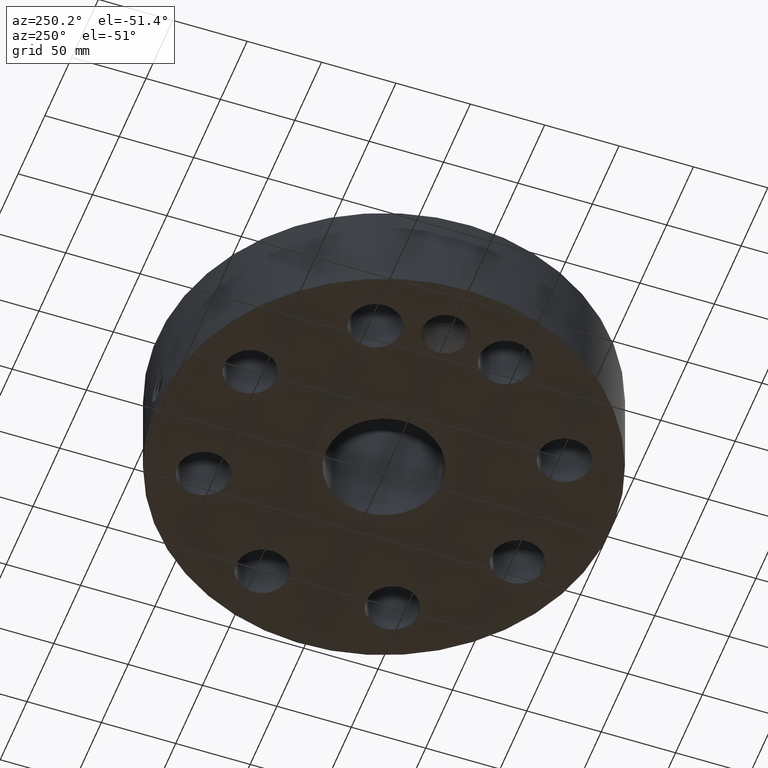
[diagram: clean part render]
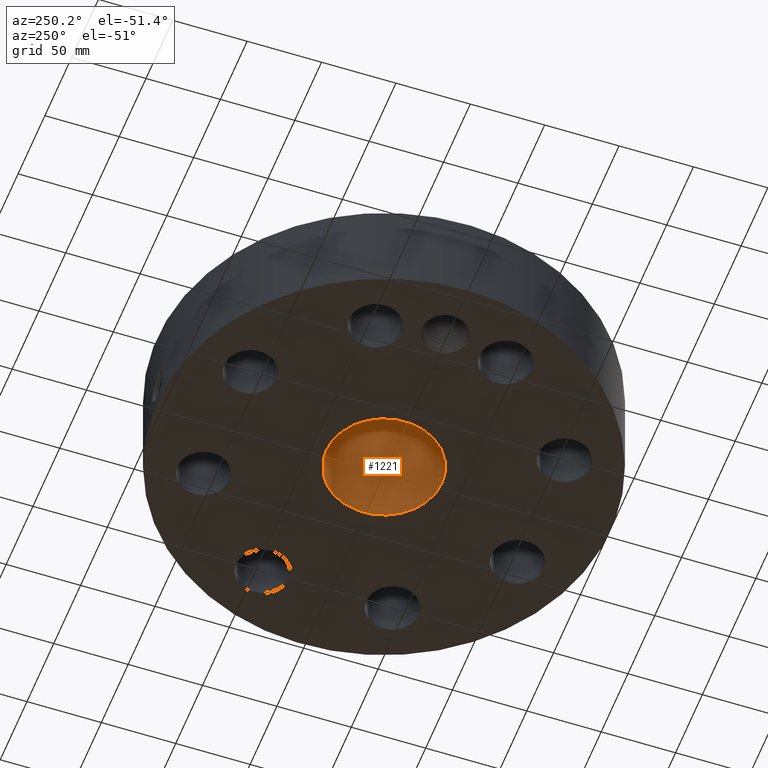
[diagram: same view with one face highlighted and labeled with its STEP entity id]
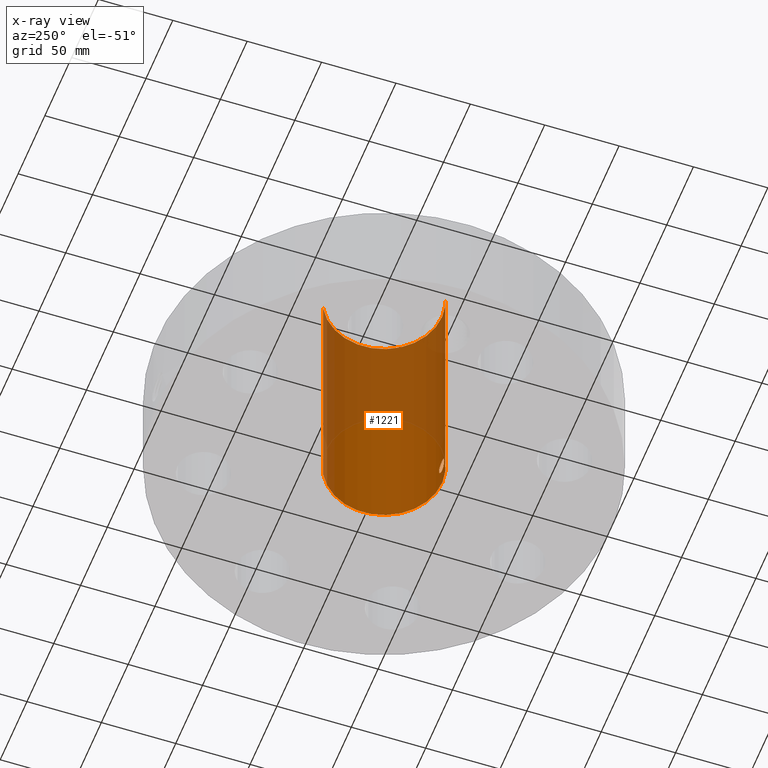
[diagram: x-ray of the same camera — body ghosted, the highlighted face saturated]
A machine part, auxiliary view. The second image highlights one B-rep face of the part: STEP entity #1221.
The next image is the same camera in x-ray: the body ghosted, the highlighted face saturated — about 54% of this face is hidden behind the body in this view.
In plain terms, the highlighted cylindrical surface (partial cylindrical patch) has radius 38.9636 mm, axis along (0, 0, -1).
Its self-contained STEP definition (entity closure, byte-faithful):
#246=AXIS2_PLACEMENT_3D('Circle Axis2P3D',#244,#245,$) ;
#1152=AXIS2_PLACEMENT_3D('Cylinder Axis2P3D',#1149,#1150,#1151) ;
#1156=AXIS2_PLACEMENT_3D('Circle Axis2P3D',#1154,#1155,$) ;
#244=CARTESIAN_POINT('Axis2P3D Location',(0.,0.,0.250000000001)) ;
#248=CARTESIAN_POINT('Vertex',(0.735438776222,1.34621164995,0.250000000001)) ;
#250=CARTESIAN_POINT('Vertex',(-0.735438776222,-1.34621164995,0.250000000001)) ;
#1149=CARTESIAN_POINT('Axis2P3D Location',(0.,0.,3.56000000001)) ;
#1154=CARTESIAN_POINT('Axis2P3D Location',(0.,0.,6.87000000003)) ;
#1158=CARTESIAN_POINT('Vertex',(0.735438776222,1.34621164995,6.87000000003)) ;
#1160=CARTESIAN_POINT('Vertex',(-0.735438776222,-1.34621164995,6.87000000003)) ;
#1163=CARTESIAN_POINT('Line Origine',(0.735438776222,1.34621164995,3.56000000001)) ;
#1168=CARTESIAN_POINT('Line Origine',(-0.735438776222,-1.34621164995,3.56000000001)) ;
#1180=CARTESIAN_POINT('Control Point',(0.164546730355,-1.52514929549,0.850107711515)) ;
#1181=CARTESIAN_POINT('Control Point',(0.153730987742,-1.52631619443,0.83030962746)) ;
#1182=CARTESIAN_POINT('Control Point',(0.139943198898,-1.52770675216,0.812148390873)) ;
#1183=CARTESIAN_POINT('Control Point',(0.123507748962,-1.52917958204,0.796208112037)) ;
#1184=CARTESIAN_POINT('Control Point',(0.0771300553307,-1.53257507292,0.763187347529)) ;
#1185=CARTESIAN_POINT('Control Point',(0.021117456962,-1.53443807468,0.748997528331)) ;
#1186=CARTESIAN_POINT('Control Point',(-0.013915671302,-1.53452842349,0.74833651336)) ;
#1187=CARTESIAN_POINT('Control Point',(-0.0704492146695,-1.53291709887,0.76041623749)) ;
#1188=CARTESIAN_POINT('Control Point',(-0.118051609542,-1.52962023944,0.79169134432)) ;
#1189=CARTESIAN_POINT('Control Point',(-0.135083668784,-1.52815406454,0.807020195623)) ;
#1190=CARTESIAN_POINT('Control Point',(-0.174443725809,-1.52429835588,0.855045646809)) ;
#1191=CARTESIAN_POINT('Control Point',(-0.192228358512,-1.52190251018,0.916011178561)) ;
#1192=CARTESIAN_POINT('Control Point',(-0.192989830599,-1.52179279367,0.956827431131)) ;
#1193=CARTESIAN_POINT('Control Point',(-0.183177815637,-1.52313920758,0.995788315641)) ;
#1194=CARTESIAN_POINT('Control Point',(-0.164546730355,-1.52514929549,1.02989228849)) ;
#1195=CARTESIAN_POINT('Vertex',(0.164546730355,-1.52514929549,0.850107711515)) ;
#1197=CARTESIAN_POINT('Vertex',(-0.164546730355,-1.52514929549,1.02989228849)) ;
#1201=CARTESIAN_POINT('Control Point',(-0.164546730355,-1.52514929549,1.02989228849)) ;
#1202=CARTESIAN_POINT('Control Point',(-0.153730987743,-1.52631619443,1.04969037255)) ;
#1203=CARTESIAN_POINT('Control Point',(-0.139943198902,-1.52770675216,1.06785160913)) ;
#1204=CARTESIAN_POINT('Control Point',(-0.123507748957,-1.52917958204,1.08379188797)) ;
#1205=CARTESIAN_POINT('Control Point',(-0.077130055326,-1.53257507292,1.11681265248)) ;
#1206=CARTESIAN_POINT('Control Point',(-0.0211174569587,-1.53443807468,1.13100247168)) ;
#1207=CARTESIAN_POINT('Control Point',(0.0139156713015,-1.53452842349,1.13166348665)) ;
#1208=CARTESIAN_POINT('Control Point',(0.070449214678,-1.53291709887,1.11958376252)) ;
#1209=CARTESIAN_POINT('Control Point',(0.118051609556,-1.52962023944,1.08830865568)) ;
#1210=CARTESIAN_POINT('Control Point',(0.135083668775,-1.52815406454,1.0729798044)) ;
#1211=CARTESIAN_POINT('Control Point',(0.174443725805,-1.52429835588,1.02495435321)) ;
#1212=CARTESIAN_POINT('Control Point',(0.19222835851,-1.52190251018,0.963988821451)) ;
#1213=CARTESIAN_POINT('Control Point',(0.192989830597,-1.52179279367,0.923172568871)) ;
#1214=CARTESIAN_POINT('Control Point',(0.183177815636,-1.52313920758,0.884211684364)) ;
#1215=CARTESIAN_POINT('Control Point',(0.164546730355,-1.52514929549,0.850107711515)) ;
#245=DIRECTION('Axis2P3D Direction',(0.,0.,-0.0393700787402)) ;
#1150=DIRECTION('Axis2P3D Direction',(0.,0.,-0.0393700787402)) ;
#1151=DIRECTION('Axis2P3D XDirection',(-0.0188750212049,-0.0345504945626,0.)) ;
#1155=DIRECTION('Axis2P3D Direction',(0.,0.,-0.0393700787402)) ;
#1164=DIRECTION('Vector Direction',(0.,0.,-0.0393700787402)) ;
#1169=DIRECTION('Vector Direction',(0.,0.,-0.0393700787402)) ;
#1165=VECTOR('Line Direction',#1164,0.0393700787402) ;
#1170=VECTOR('Line Direction',#1169,0.0393700787402) ;
#1174=ORIENTED_EDGE('',*,*,#1162,.F.) ;
#1175=ORIENTED_EDGE('',*,*,#1167,.T.) ;
#1176=ORIENTED_EDGE('',*,*,#252,.T.) ;
#1177=ORIENTED_EDGE('',*,*,#1172,.F.) ;
#1218=ORIENTED_EDGE('',*,*,#1199,.F.) ;
#1219=ORIENTED_EDGE('',*,*,#1216,.F.) ;
#1220=FACE_BOUND('',#1217,.T.) ;
#1221=ADVANCED_FACE('PartBody',(#1178,#1220),#1153,.F.) ;
#1179=B_SPLINE_CURVE_WITH_KNOTS('',5,(#1180,#1181,#1182,#1183,#1184,#1185,#1186,#1187,#1188,#1189,#1190,#1191,#1192,#1193,#1194),.UNSPECIFIED.,.F.,.U.,(6,3,3,3,6),(0.,4.05727166014,10.1291862374,14.189547794,21.1785615875),.UNSPECIFIED.) ;
#1200=B_SPLINE_CURVE_WITH_KNOTS('',5,(#1201,#1202,#1203,#1204,#1205,#1206,#1207,#1208,#1209,#1210,#1211,#1212,#1213,#1214,#1215),.UNSPECIFIED.,.F.,.U.,(6,3,3,3,6),(0.,4.05727165964,10.1291862371,14.1895477951,21.178561588),.UNSPECIFIED.) ;
#247=CIRCLE('generated circle',#246,1.53400000001) ;
#1157=CIRCLE('generated circle',#1156,1.53400000001) ;
#1153=CYLINDRICAL_SURFACE('generated cylinder',#1152,1.53400000001) ;
#252=EDGE_CURVE('',#249,#251,#247,.T.) ;
#1162=EDGE_CURVE('',#1159,#1161,#1157,.T.) ;
#1167=EDGE_CURVE('',#1159,#249,#1166,.T.) ;
#1172=EDGE_CURVE('',#1161,#251,#1171,.T.) ;
#1199=EDGE_CURVE('',#1196,#1198,#1179,.T.) ;
#1216=EDGE_CURVE('',#1198,#1196,#1200,.T.) ;
#1173=EDGE_LOOP('',(#1174,#1175,#1176,#1177)) ;
#1217=EDGE_LOOP('',(#1218,#1219)) ;
#1178=FACE_OUTER_BOUND('',#1173,.T.) ;
#1166=LINE('Line',#1163,#1165) ;
#1171=LINE('Line',#1168,#1170) ;
#249=VERTEX_POINT('',#248) ;
#251=VERTEX_POINT('',#250) ;
#1159=VERTEX_POINT('',#1158) ;
#1161=VERTEX_POINT('',#1160) ;
#1196=VERTEX_POINT('',#1195) ;
#1198=VERTEX_POINT('',#1197) ;